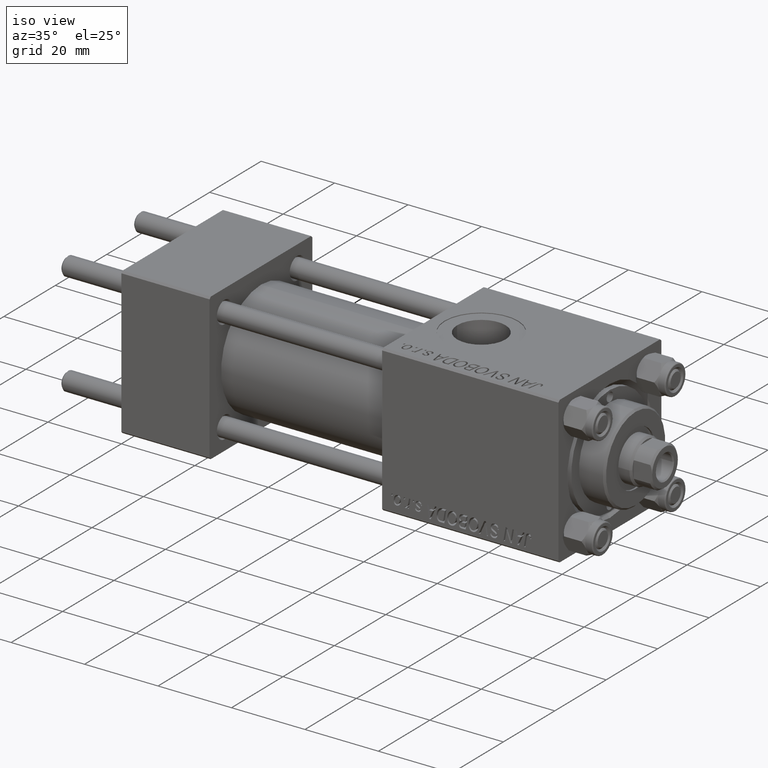
[diagram: clean part render]
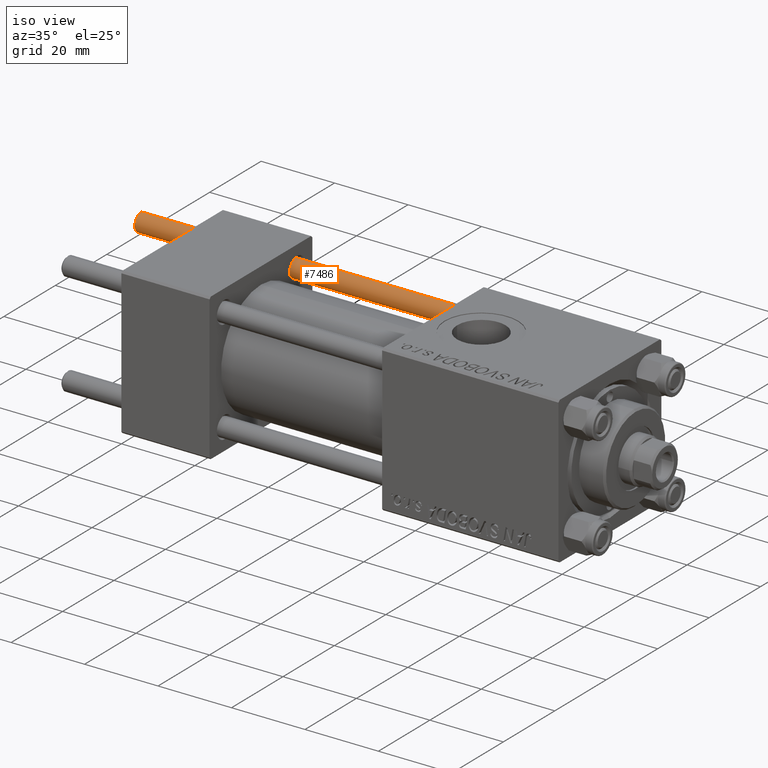
[diagram: same view with one face highlighted and labeled with its STEP entity id]
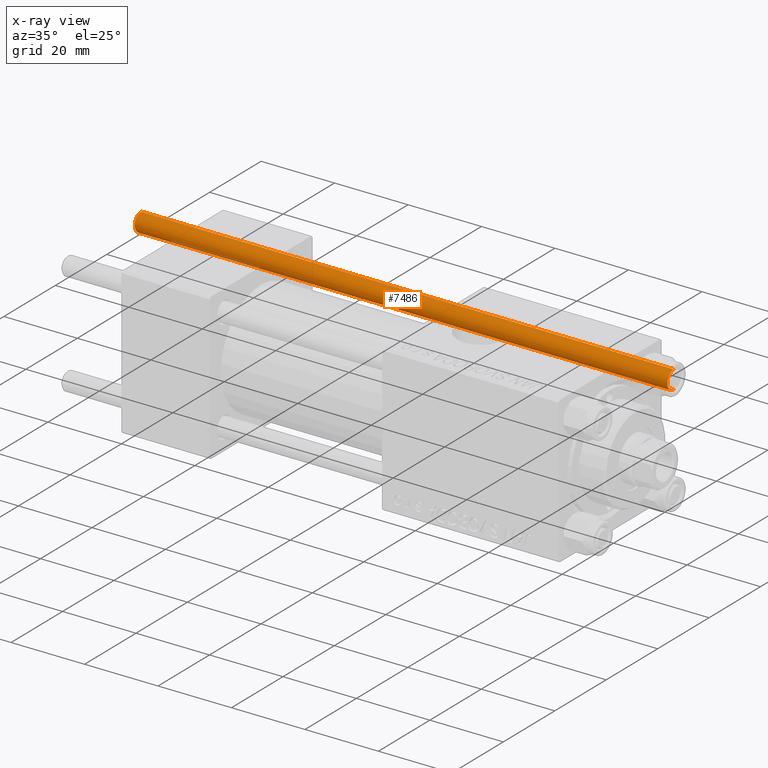
[diagram: x-ray of the same camera — body ghosted, the highlighted face saturated]
A machine part, iso view. The second image highlights one B-rep face of the part: STEP entity #7486.
The next image is the same camera in x-ray: the body ghosted, the highlighted face saturated — about 2% of this face is hidden behind the body in this view.
In plain terms, the highlighted cylindrical surface (edge-blend (fillet) strip) has radius 2.5 mm, axis along (-1, -0, -0).
Its self-contained STEP definition (entity closure, byte-faithful):
#856 = AXIS2_PLACEMENT_3D ( 'NONE', #9242, #25077, #40510 ) ;
#1274 = CYLINDRICAL_SURFACE ( 'NONE', #27393, 2.500000000000000000 ) ;
#1430 = CARTESIAN_POINT ( 'NONE',  ( 2.500000000000000000, 3.061616997868383141E-16, 145.5000000000000284 ) ) ;
#4419 = LINE ( 'NONE', #39263, #37826 ) ;
#5556 = CARTESIAN_POINT ( 'NONE',  ( 0.000000000000000000, 0.000000000000000000, 146.0000000000000000 ) ) ;
#5684 = CIRCLE ( 'NONE', #856, 2.500000000000000000 ) ;
#6543 = VERTEX_POINT ( 'NONE', #21948 ) ;
#7486 = ADVANCED_FACE ( 'NONE', ( #20456 ), #1274, .T. ) ;
#8301 = ORIENTED_EDGE ( 'NONE', *, *, #41596, .T. ) ;
#9242 = CARTESIAN_POINT ( 'NONE',  ( 0.000000000000000000, 0.000000000000000000, 145.5000000000000284 ) ) ;
#9249 = VERTEX_POINT ( 'NONE', #38991 ) ;
#11527 = VERTEX_POINT ( 'NONE', #42460 ) ;
#12095 = LINE ( 'NONE', #42615, #29080 ) ;
#14300 = DIRECTION ( 'NONE',  ( -0.000000000000000000, -0.000000000000000000, 1.000000000000000000 ) ) ;
#15424 = ORIENTED_EDGE ( 'NONE', *, *, #26104, .F. ) ;
#16678 = DIRECTION ( 'NONE',  ( -0.000000000000000000, -0.000000000000000000, -1.000000000000000000 ) ) ;
#16772 = DIRECTION ( 'NONE',  ( -0.000000000000000000, -0.000000000000000000, -1.000000000000000000 ) ) ;
#18303 = DIRECTION ( 'NONE',  ( 1.000000000000000000, 0.000000000000000000, 0.000000000000000000 ) ) ;
#18787 = CARTESIAN_POINT ( 'NONE',  ( 0.000000000000000000, 0.000000000000000000, 0.5000000000000559552 ) ) ;
#19065 = ORIENTED_EDGE ( 'NONE', *, *, #29447, .T. ) ;
#19638 = CIRCLE ( 'NONE', #20478, 2.500000000000000000 ) ;
#20456 = FACE_OUTER_BOUND ( 'NONE', #23545, .T. ) ;
#20478 = AXIS2_PLACEMENT_3D ( 'NONE', #18787, #14300, #18303 ) ;
#21948 = CARTESIAN_POINT ( 'NONE',  ( -2.500000000000000000, 0.000000000000000000, 145.5000000000000284 ) ) ;
#23545 = EDGE_LOOP ( 'NONE', ( #15424, #19065, #25384, #8301 ) ) ;
#23580 = VERTEX_POINT ( 'NONE', #1430 ) ;
#25077 = DIRECTION ( 'NONE',  ( 0.000000000000000000, 0.000000000000000000, -1.000000000000000000 ) ) ;
#25384 = ORIENTED_EDGE ( 'NONE', *, *, #30189, .T. ) ;
#26104 = EDGE_CURVE ( 'NONE', #23580, #9249, #4419, .T. ) ;
#27183 = DIRECTION ( 'NONE',  ( -0.000000000000000000, -0.000000000000000000, -1.000000000000000000 ) ) ;
#27393 = AXIS2_PLACEMENT_3D ( 'NONE', #5556, #16678, #43946 ) ;
#29080 = VECTOR ( 'NONE', #27183, 1000.000000000000000 ) ;
#29447 = EDGE_CURVE ( 'NONE', #23580, #6543, #5684, .T. ) ;
#30189 = EDGE_CURVE ( 'NONE', #6543, #11527, #12095, .T. ) ;
#37826 = VECTOR ( 'NONE', #16772, 1000.000000000000000 ) ;
#38991 = CARTESIAN_POINT ( 'NONE',  ( 2.500000000000000000, 3.061616997868383141E-16, 0.5000000000000559552 ) ) ;
#39263 = CARTESIAN_POINT ( 'NONE',  ( 2.500000000000000000, 3.061616997868383141E-16, 146.0000000000000000 ) ) ;
#40510 = DIRECTION ( 'NONE',  ( 1.000000000000000000, 0.000000000000000000, 0.000000000000000000 ) ) ;
#41596 = EDGE_CURVE ( 'NONE', #11527, #9249, #19638, .T. ) ;
#42460 = CARTESIAN_POINT ( 'NONE',  ( -2.500000000000000000, 0.000000000000000000, 0.5000000000000559552 ) ) ;
#42615 = CARTESIAN_POINT ( 'NONE',  ( -2.500000000000000000, 0.000000000000000000, 146.0000000000000000 ) ) ;
#43946 = DIRECTION ( 'NONE',  ( -1.000000000000000000, 0.000000000000000000, 0.000000000000000000 ) ) ;